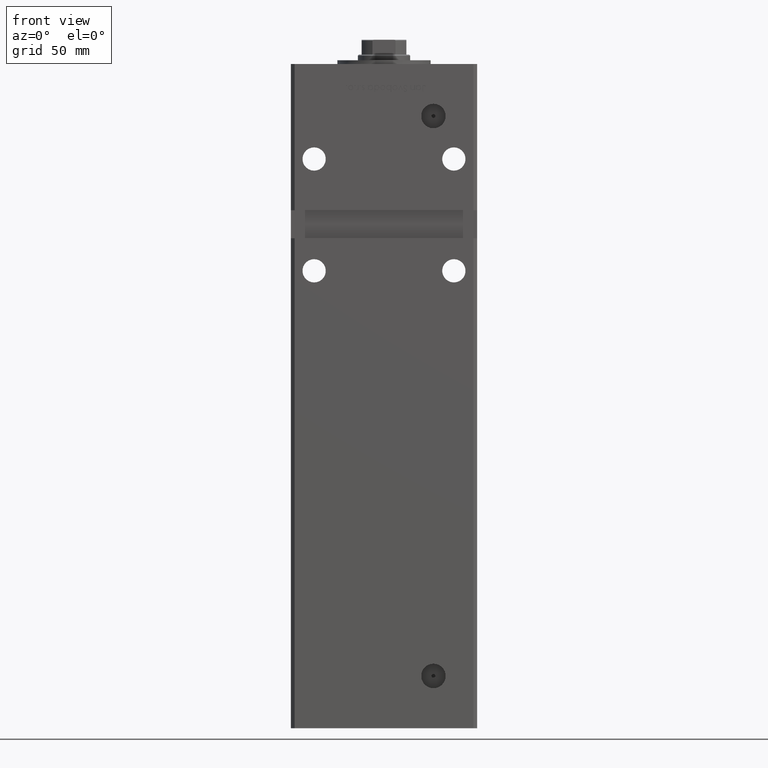
[diagram: clean part render]
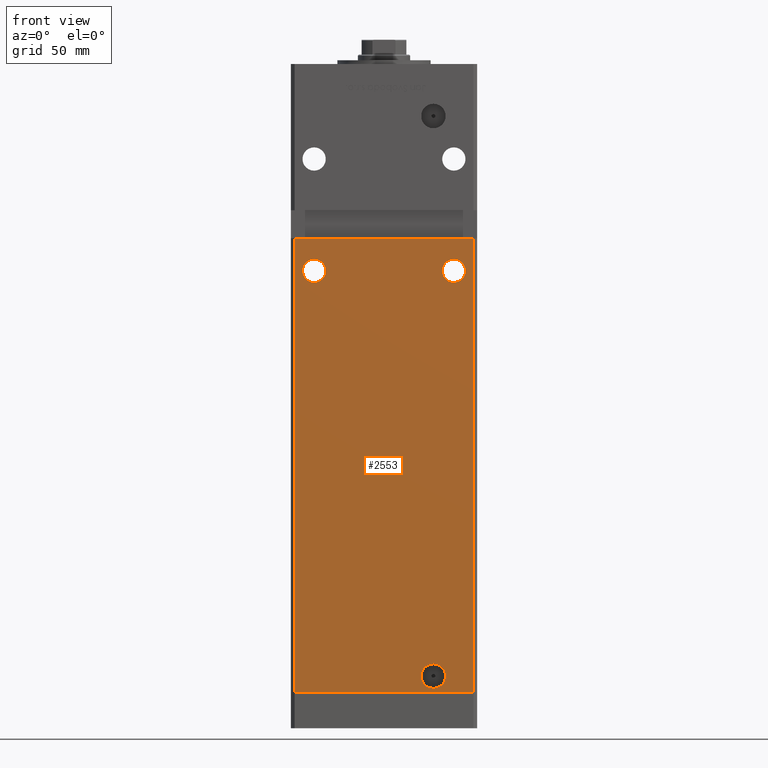
[diagram: same view with one face highlighted and labeled with its STEP entity id]
A machine part, front view. The second image highlights one B-rep face of the part: STEP entity #2553.
In plain terms, the highlighted planar face has unit normal (0, 1, 0).
Its self-contained STEP definition (entity closure, byte-faithful):
#763 = EDGE_LOOP ( 'NONE', ( #13577, #27615 ) ) ;
#871 = FACE_BOUND ( 'NONE', #35805, .T. ) ;
#1330 = CIRCLE ( 'NONE', #19389, 6.579999999999994742 ) ;
#1775 = EDGE_CURVE ( 'NONE', #14769, #21169, #22072, .T. ) ;
#2553 = ADVANCED_FACE ( 'NONE', ( #36699, #44734, #871, #37754 ), #37489, .F. ) ;
#2607 = ORIENTED_EDGE ( 'NONE', *, *, #38598, .T. ) ;
#3104 = EDGE_CURVE ( 'NONE', #37996, #5216, #7817, .T. ) ;
#3419 = CARTESIAN_POINT ( 'NONE',  ( -47.99999999999998579, -43.50000000000000000, 318.5000000000000000 ) ) ;
#3843 = EDGE_CURVE ( 'NONE', #49866, #36447, #11791, .T. ) ;
#4160 = CARTESIAN_POINT ( 'NONE',  ( -49.99999999999998579, -43.50000000000000000, 244.0000000000000000 ) ) ;
#4432 = LINE ( 'NONE', #4160, #53030 ) ;
#5216 = VERTEX_POINT ( 'NONE', #42777 ) ;
#5566 = CARTESIAN_POINT ( 'NONE',  ( -47.99999999999998579, -43.50000000000000000, 0.000000000000000000 ) ) ;
#5706 = CARTESIAN_POINT ( 'NONE',  ( 37.50000000000000000, -43.50000000000000000, 220.2500000000000000 ) ) ;
#5820 = ORIENTED_EDGE ( 'NONE', *, *, #20922, .T. ) ;
#5977 = DIRECTION ( 'NONE',  ( 0.000000000000000000, 0.000000000000000000, 1.000000000000000000 ) ) ;
#6294 = AXIS2_PLACEMENT_3D ( 'NONE', #30763, #46596, #5977 ) ;
#6567 = CIRCLE ( 'NONE', #41774, 6.250000000000005329 ) ;
#6877 = DIRECTION ( 'NONE',  ( 0.000000000000000000, 1.000000000000000000, 0.000000000000000000 ) ) ;
#7817 = CIRCLE ( 'NONE', #49051, 6.250000000000005329 ) ;
#11193 = EDGE_CURVE ( 'NONE', #19405, #31815, #18414, .T. ) ;
#11376 = VERTEX_POINT ( 'NONE', #5706 ) ;
#11599 = CARTESIAN_POINT ( 'NONE',  ( 26.49999999999999645, -43.50000000000000000, 15.57999999999999474 ) ) ;
#11626 = CARTESIAN_POINT ( 'NONE',  ( 47.99999999999998579, -43.50000000000000000, 244.0000000000000000 ) ) ;
#11791 = LINE ( 'NONE', #3419, #31140 ) ;
#11995 = DIRECTION ( 'NONE',  ( 1.000000000000000000, 0.000000000000000000, 0.000000000000000000 ) ) ;
#13075 = CARTESIAN_POINT ( 'NONE',  ( -37.50000000000000000, -43.50000000000000000, 226.5000000000000000 ) ) ;
#13577 = ORIENTED_EDGE ( 'NONE', *, *, #3104, .T. ) ;
#14112 = AXIS2_PLACEMENT_3D ( 'NONE', #14653, #27308, #19730 ) ;
#14653 = CARTESIAN_POINT ( 'NONE',  ( 26.49999999999999645, -43.50000000000000000, 9.000000000000000000 ) ) ;
#14719 = LINE ( 'NONE', #5566, #29704 ) ;
#14769 = VERTEX_POINT ( 'NONE', #11626 ) ;
#16282 = ORIENTED_EDGE ( 'NONE', *, *, #52222, .F. ) ;
#16742 = CIRCLE ( 'NONE', #46803, 6.250000000000005329 ) ;
#18414 = CIRCLE ( 'NONE', #14112, 6.579999999999994742 ) ;
#18826 = EDGE_CURVE ( 'NONE', #36447, #21169, #14719, .T. ) ;
#19389 = AXIS2_PLACEMENT_3D ( 'NONE', #49425, #37340, #36820 ) ;
#19405 = VERTEX_POINT ( 'NONE', #11599 ) ;
#19730 = DIRECTION ( 'NONE',  ( 0.000000000000000000, 0.000000000000000000, -1.000000000000000000 ) ) ;
#19917 = CARTESIAN_POINT ( 'NONE',  ( -37.50000000000000000, -43.50000000000000000, 232.7500000000000000 ) ) ;
#20316 = ORIENTED_EDGE ( 'NONE', *, *, #3843, .T. ) ;
#20817 = CARTESIAN_POINT ( 'NONE',  ( -47.99999999999998579, -43.50000000000000000, 318.5000000000000000 ) ) ;
#20836 = CARTESIAN_POINT ( 'NONE',  ( -47.99999999999998579, -43.50000000000000000, 0.000000000000000000 ) ) ;
#20922 = EDGE_CURVE ( 'NONE', #41809, #11376, #6567, .T. ) ;
#21169 = VERTEX_POINT ( 'NONE', #23858 ) ;
#21681 = DIRECTION ( 'NONE',  ( 0.000000000000000000, 0.000000000000000000, 1.000000000000000000 ) ) ;
#22072 = LINE ( 'NONE', #38486, #43055 ) ;
#22440 = AXIS2_PLACEMENT_3D ( 'NONE', #20817, #37223, #41241 ) ;
#22874 = DIRECTION ( 'NONE',  ( -0.000000000000000000, -0.000000000000000000, -1.000000000000000000 ) ) ;
#22973 = EDGE_LOOP ( 'NONE', ( #33424, #16282, #20316, #25213 ) ) ;
#23858 = CARTESIAN_POINT ( 'NONE',  ( 47.99999999999998579, -43.50000000000000000, 0.000000000000000000 ) ) ;
#25213 = ORIENTED_EDGE ( 'NONE', *, *, #18826, .T. ) ;
#25734 = DIRECTION ( 'NONE',  ( 0.000000000000000000, 1.000000000000000000, 0.000000000000000000 ) ) ;
#27308 = DIRECTION ( 'NONE',  ( 0.000000000000000000, -1.000000000000000000, 0.000000000000000000 ) ) ;
#27609 = CARTESIAN_POINT ( 'NONE',  ( 37.50000000000000000, -43.50000000000000000, 226.5000000000000000 ) ) ;
#27615 = ORIENTED_EDGE ( 'NONE', *, *, #34601, .T. ) ;
#27757 = ORIENTED_EDGE ( 'NONE', *, *, #40877, .F. ) ;
#29491 = CARTESIAN_POINT ( 'NONE',  ( 37.50000000000000000, -43.50000000000000000, 232.7500000000000000 ) ) ;
#29505 = CIRCLE ( 'NONE', #6294, 6.250000000000005329 ) ;
#29704 = VECTOR ( 'NONE', #30350, 1000.000000000000000 ) ;
#30350 = DIRECTION ( 'NONE',  ( 1.000000000000000000, 0.000000000000000000, 0.000000000000000000 ) ) ;
#30763 = CARTESIAN_POINT ( 'NONE',  ( -37.50000000000000000, -43.50000000000000000, 226.5000000000000000 ) ) ;
#31140 = VECTOR ( 'NONE', #44848, 1000.000000000000000 ) ;
#31301 = CARTESIAN_POINT ( 'NONE',  ( -47.99999999999998579, -43.50000000000000000, 244.0000000000000000 ) ) ;
#31395 = DIRECTION ( 'NONE',  ( 0.000000000000000000, 0.000000000000000000, 1.000000000000000000 ) ) ;
#31815 = VERTEX_POINT ( 'NONE', #37558 ) ;
#33424 = ORIENTED_EDGE ( 'NONE', *, *, #1775, .F. ) ;
#34122 = DIRECTION ( 'NONE',  ( 0.000000000000000000, 1.000000000000000000, 0.000000000000000000 ) ) ;
#34601 = EDGE_CURVE ( 'NONE', #5216, #37996, #29505, .T. ) ;
#35805 = EDGE_LOOP ( 'NONE', ( #27757, #49728 ) ) ;
#36447 = VERTEX_POINT ( 'NONE', #20836 ) ;
#36699 = FACE_BOUND ( 'NONE', #763, .T. ) ;
#36820 = DIRECTION ( 'NONE',  ( 0.000000000000000000, 0.000000000000000000, -1.000000000000000000 ) ) ;
#37223 = DIRECTION ( 'NONE',  ( 0.000000000000000000, 1.000000000000000000, 0.000000000000000000 ) ) ;
#37340 = DIRECTION ( 'NONE',  ( 0.000000000000000000, -1.000000000000000000, 0.000000000000000000 ) ) ;
#37489 = PLANE ( 'NONE',  #22440 ) ;
#37558 = CARTESIAN_POINT ( 'NONE',  ( 26.49999999999999645, -43.50000000000000000, 2.420000000000004814 ) ) ;
#37630 = DIRECTION ( 'NONE',  ( 0.000000000000000000, 0.000000000000000000, 1.000000000000000000 ) ) ;
#37754 = FACE_OUTER_BOUND ( 'NONE', #22973, .T. ) ;
#37996 = VERTEX_POINT ( 'NONE', #19917 ) ;
#38486 = CARTESIAN_POINT ( 'NONE',  ( 47.99999999999998579, -43.50000000000000000, 318.5000000000000000 ) ) ;
#38598 = EDGE_CURVE ( 'NONE', #11376, #41809, #16742, .T. ) ;
#40877 = EDGE_CURVE ( 'NONE', #31815, #19405, #1330, .T. ) ;
#41241 = DIRECTION ( 'NONE',  ( 0.000000000000000000, -0.000000000000000000, 1.000000000000000000 ) ) ;
#41774 = AXIS2_PLACEMENT_3D ( 'NONE', #50241, #34122, #37630 ) ;
#41809 = VERTEX_POINT ( 'NONE', #29491 ) ;
#42777 = CARTESIAN_POINT ( 'NONE',  ( -37.50000000000000000, -43.50000000000000000, 220.2500000000000000 ) ) ;
#43055 = VECTOR ( 'NONE', #22874, 1000.000000000000000 ) ;
#44734 = FACE_BOUND ( 'NONE', #53027, .T. ) ;
#44848 = DIRECTION ( 'NONE',  ( -0.000000000000000000, -0.000000000000000000, -1.000000000000000000 ) ) ;
#46596 = DIRECTION ( 'NONE',  ( 0.000000000000000000, 1.000000000000000000, 0.000000000000000000 ) ) ;
#46803 = AXIS2_PLACEMENT_3D ( 'NONE', #27609, #6877, #31395 ) ;
#49051 = AXIS2_PLACEMENT_3D ( 'NONE', #13075, #25734, #21681 ) ;
#49425 = CARTESIAN_POINT ( 'NONE',  ( 26.49999999999999645, -43.50000000000000000, 9.000000000000000000 ) ) ;
#49728 = ORIENTED_EDGE ( 'NONE', *, *, #11193, .F. ) ;
#49866 = VERTEX_POINT ( 'NONE', #31301 ) ;
#50241 = CARTESIAN_POINT ( 'NONE',  ( 37.50000000000000000, -43.50000000000000000, 226.5000000000000000 ) ) ;
#52222 = EDGE_CURVE ( 'NONE', #49866, #14769, #4432, .T. ) ;
#53027 = EDGE_LOOP ( 'NONE', ( #5820, #2607 ) ) ;
#53030 = VECTOR ( 'NONE', #11995, 1000.000000000000000 ) ;